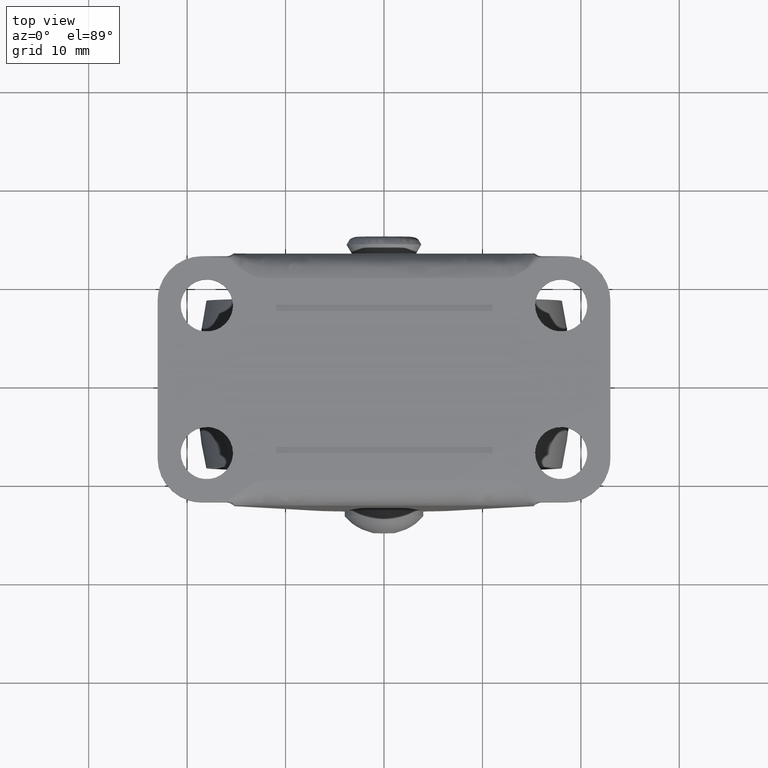
[diagram: clean part render]
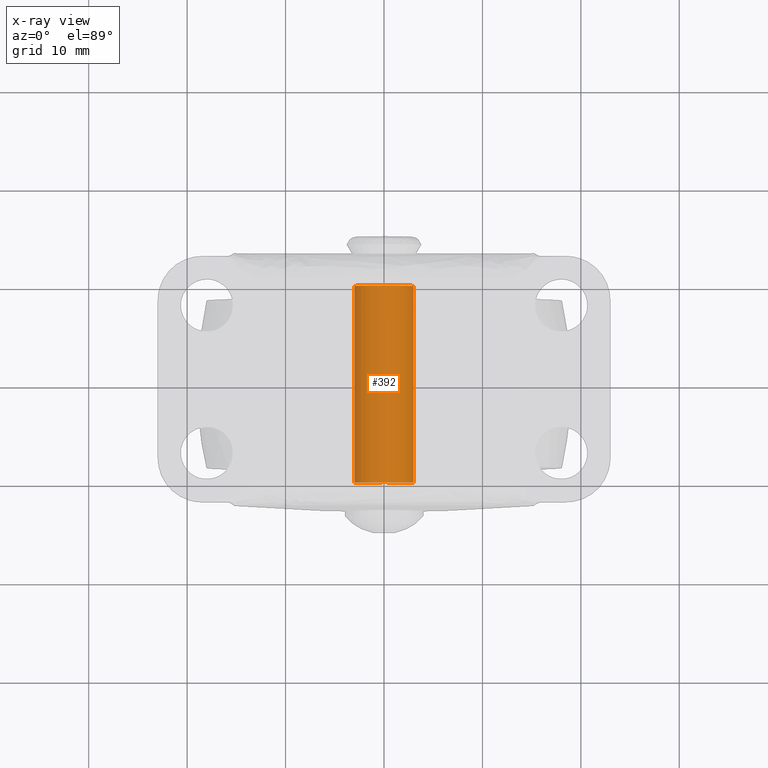
[diagram: x-ray — body ghosted, one internal face saturated and labeled with its STEP entity id]
A machine part, top view, then the same camera in x-ray: the body is ghosted and one INTERNAL B-rep face — a face not visible from any outside direction — is saturated and labeled: STEP entity #392.
In plain terms, the highlighted face is a freeform B-spline surface patch.
Its self-contained STEP definition (entity closure, byte-faithful):
#290=CARTESIAN_POINT('',(3.001681112406319,10.500000000000009,-0.356795300931254));
#291=CARTESIAN_POINT('',(3.011892440629342,10.500000000000002,-0.270888477103614));
#292=CARTESIAN_POINT('',(3.017173846287110,10.500000000000000,-0.184538257888434));
#293=CARTESIAN_POINT('',(3.201712104175545,10.500000000000002,2.832635588398678));
#294=CARTESIAN_POINT('',(0.184538257888435,10.500000000000000,3.017173846287111));
#295=CARTESIAN_POINT('',(-2.832635588398676,10.500000000000002,3.201712104175547));
#296=CARTESIAN_POINT('',(-3.017173846287110,10.500000000000000,0.184538257888436));
#297=CARTESIAN_POINT('',(3.001681112406319,-10.512500000000001,-0.356795300931254));
#298=CARTESIAN_POINT('',(3.011892440629342,-10.512499999999998,-0.270888477103614));
#299=CARTESIAN_POINT('',(3.017173846287110,-10.512499999999999,-0.184538257888434));
#300=CARTESIAN_POINT('',(3.201712104175545,-10.512499999999999,2.832635588398678));
#301=CARTESIAN_POINT('',(0.184538257888435,-10.512499999999999,3.017173846287111));
#302=CARTESIAN_POINT('',(-2.832635588398676,-10.512499999999999,3.201712104175547));
#303=CARTESIAN_POINT('',(-3.017173846287110,-10.512499999999999,0.184538257888436));
#311=(BOUNDED_SURFACE()B_SPLINE_SURFACE(2,1,((#290,#297),(#291,#298),(#292,#299),(#293,#300),(#294,#301),(#295,#302),(#296,#303)),.UNSPECIFIED.,.F.,.F.,.U.)B_SPLINE_SURFACE_WITH_KNOTS((3,2,2,3),(2,2),(0.0,0.200334356304657,5.208693263921068,10.217052171537480),(0.0,21.012500000000010),.UNSPECIFIED.)GEOMETRIC_REPRESENTATION_ITEM()RATIONAL_B_SPLINE_SURFACE(((0.977505800795127,0.977505800795127),(0.988284271247462,0.988284271247462),(1.0,1.0),(0.707106781186548,0.707106781186548),(1.0,1.0),(0.707106781186548,0.707106781186548),(1.0,1.0)))REPRESENTATION_ITEM('')SURFACE());
#312=CARTESIAN_POINT('',(3.001681112398371,10.0,-0.356795300998116));
#313=VERTEX_POINT('',#312);
#314=CARTESIAN_POINT('',(0.0,10.0,3.022811999999911));
#315=VERTEX_POINT('',#314);
#316=CARTESIAN_POINT('',(3.001681112398371,10.000000000000002,-0.356795300998116));
#317=CARTESIAN_POINT('',(3.022811999999910,10.0,-0.179023379640792));
#318=CARTESIAN_POINT('',(3.022811999999910,10.0,9.884614E-016));
#319=CARTESIAN_POINT('',(3.022811999999911,10.0,3.022811999999913));
#320=CARTESIAN_POINT('',(0.0,10.0,3.022811999999911));
#328=(BOUNDED_CURVE()B_SPLINE_CURVE(2,(#316,#317,#318,#319,#320),.UNSPECIFIED.,.F.,.U.)B_SPLINE_CURVE_WITH_KNOTS((3,2,3),(0.229562473508115,0.250000000000000,0.500000000000000),.UNSPECIFIED.)CURVE()GEOMETRIC_REPRESENTATION_ITEM()RATIONAL_B_SPLINE_CURVE((0.956026754173128,0.976055948324827,1.0,0.707106781186547,1.0))REPRESENTATION_ITEM(''));
#329=EDGE_CURVE('',#313,#315,#328,.T.);
#330=ORIENTED_EDGE('',*,*,#329,.F.);
#331=CARTESIAN_POINT('',(3.001681112398373,-10.0,-0.356795300998116));
#332=VERTEX_POINT('',#331);
#333=CARTESIAN_POINT('',(3.001681112398371,10.0,-0.356795300998116));
#334=CARTESIAN_POINT('',(3.001681112398373,-10.0,-0.356795300998116));
#335=QUASI_UNIFORM_CURVE('',1,(#333,#334),.UNSPECIFIED.,.F.,.U.);
#336=EDGE_CURVE('',#313,#332,#335,.T.);
#337=ORIENTED_EDGE('',*,*,#336,.T.);
#338=CARTESIAN_POINT('',(0.0,-10.0,3.022811999999916));
#339=VERTEX_POINT('',#338);
#340=CARTESIAN_POINT('',(3.001681112398373,-10.000000000000002,-0.356795300998116));
#341=CARTESIAN_POINT('',(3.022811999999916,-10.0,-0.179023379640793));
#342=CARTESIAN_POINT('',(3.022811999999915,-10.0,9.884614E-016));
#343=CARTESIAN_POINT('',(3.022811999999916,-10.0,3.022811999999916));
#344=CARTESIAN_POINT('',(0.0,-10.0,3.022811999999916));
#352=(BOUNDED_CURVE()B_SPLINE_CURVE(2,(#340,#341,#342,#343,#344),.UNSPECIFIED.,.F.,.U.)B_SPLINE_CURVE_WITH_KNOTS((3,2,3),(0.229562473508115,0.250000000000000,0.500000000000000),.UNSPECIFIED.)CURVE()GEOMETRIC_REPRESENTATION_ITEM()RATIONAL_B_SPLINE_CURVE((0.956026754173128,0.976055948324827,1.0,0.707106781186547,1.0))REPRESENTATION_ITEM(''));
#353=EDGE_CURVE('',#332,#339,#352,.T.);
#354=ORIENTED_EDGE('',*,*,#353,.T.);
#355=CARTESIAN_POINT('',(-3.017173891494551,-9.999999999999998,0.184537518750391));
#356=VERTEX_POINT('',#355);
#357=CARTESIAN_POINT('',(0.0,-10.0,3.022811999999916));
#358=CARTESIAN_POINT('',(-2.843578983340968,-10.0,3.022811999999916));
#359=CARTESIAN_POINT('',(-3.017173891494551,-9.999999999999998,0.184537518750391));
#367=(BOUNDED_CURVE()B_SPLINE_CURVE(2,(#357,#358,#359),.UNSPECIFIED.,.F.,.U.)B_SPLINE_CURVE_WITH_KNOTS((3,3),(0.500000000000000,0.739333046781947),.UNSPECIFIED.)CURVE()GEOMETRIC_REPRESENTATION_ITEM()RATIONAL_B_SPLINE_CURVE((1.0,0.719603894238420,0.976072222858535))REPRESENTATION_ITEM(''));
#368=EDGE_CURVE('',#339,#356,#367,.T.);
#369=ORIENTED_EDGE('',*,*,#368,.T.);
#370=CARTESIAN_POINT('',(-3.017173892044283,10.0,0.184537509762247));
#371=VERTEX_POINT('',#370);
#372=CARTESIAN_POINT('',(-3.017173892044283,10.0,0.184537509762247));
#373=CARTESIAN_POINT('',(-3.017173891494551,-9.999999999999998,0.184537518750391));
#374=QUASI_UNIFORM_CURVE('',1,(#372,#373),.UNSPECIFIED.,.F.,.U.);
#375=EDGE_CURVE('',#371,#356,#374,.T.);
#376=ORIENTED_EDGE('',*,*,#375,.F.);
#377=CARTESIAN_POINT('',(0.0,10.0,3.022811999999911));
#378=CARTESIAN_POINT('',(-2.843579000314653,10.0,3.022811999999911));
#379=CARTESIAN_POINT('',(-3.017173892044283,10.0,0.184537509762247));
#387=(BOUNDED_CURVE()B_SPLINE_CURVE(2,(#377,#378,#379),.UNSPECIFIED.,.F.,.U.)B_SPLINE_CURVE_WITH_KNOTS((3,3),(0.500000000000000,0.739333047809980),.UNSPECIFIED.)CURVE()GEOMETRIC_REPRESENTATION_ITEM()RATIONAL_B_SPLINE_CURVE((1.0,0.719603893034004,0.976072225061807))REPRESENTATION_ITEM(''));
#388=EDGE_CURVE('',#315,#371,#387,.T.);
#389=ORIENTED_EDGE('',*,*,#388,.F.);
#390=EDGE_LOOP('',(#330,#337,#354,#369,#376,#389));
#391=FACE_OUTER_BOUND('',#390,.T.);
#392=ADVANCED_FACE('',(#391),#311,.F.);